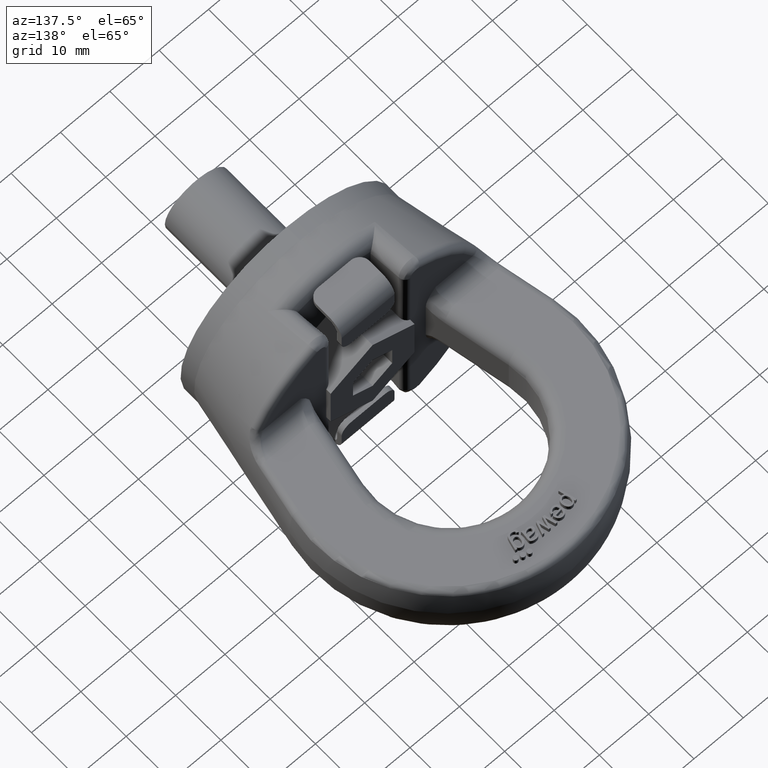
[diagram: clean part render]
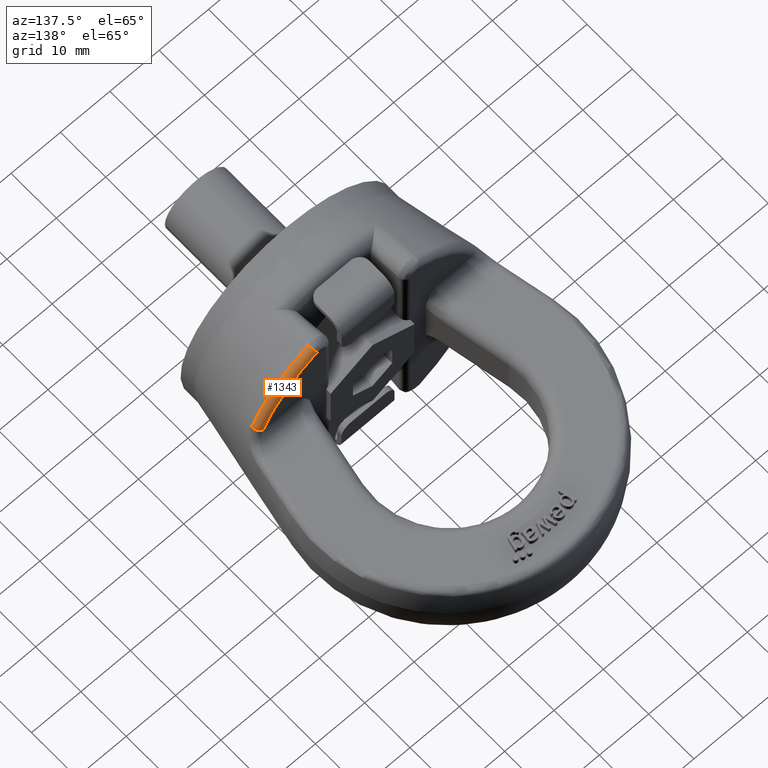
[diagram: same view with one face highlighted and labeled with its STEP entity id]
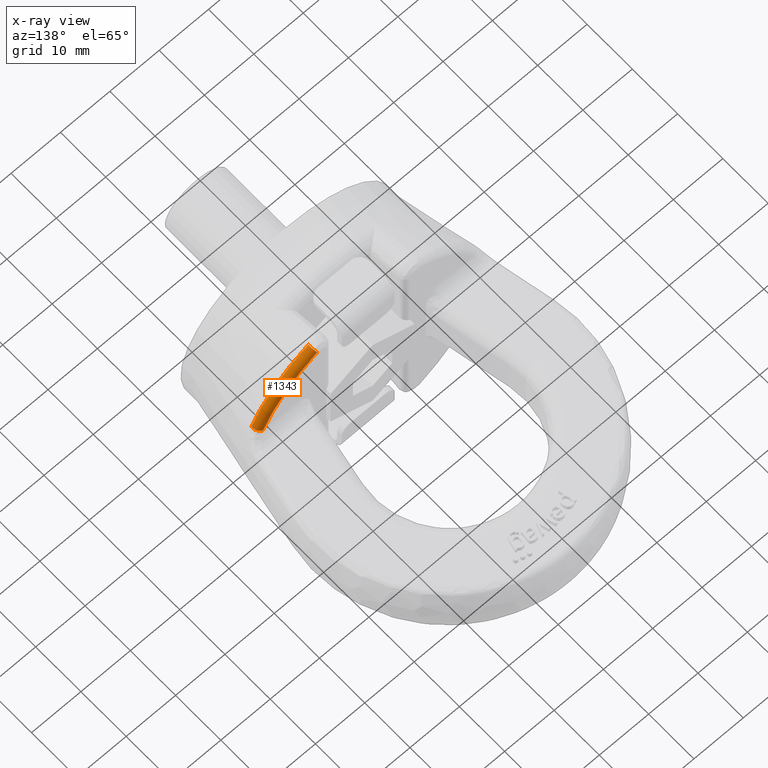
[diagram: x-ray of the same camera — body ghosted, the highlighted face saturated]
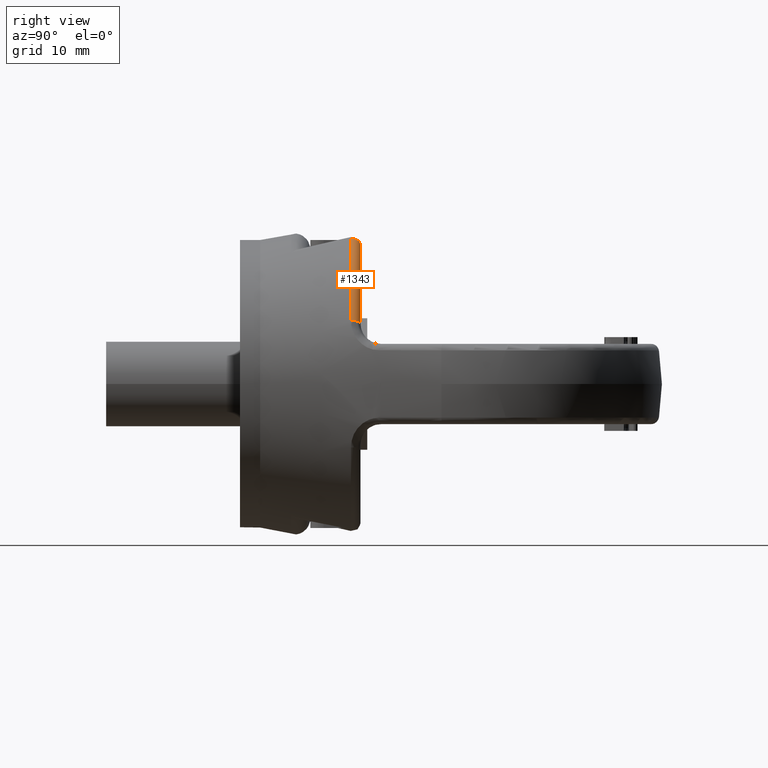
[diagram: same view with one face highlighted and labeled with its STEP entity id]
A machine part, auxiliary view. The second image highlights one B-rep face of the part: STEP entity #1343.
The next image is the same camera in x-ray: the body ghosted, the highlighted face saturated — about 0% of this face is hidden behind the body in this view.
A second angle (right view) of the same face is appended — the face is thin or edge-on in the first view.
In plain terms, the highlighted toroidal blend (fillet) surface has major radius 23.0586 mm and minor (blend) radius 1.2 mm.
Its self-contained STEP definition (entity closure, byte-faithful):
#1017=TOROIDAL_SURFACE('',#5151,23.0585735614723,1.2);
#1121=FACE_OUTER_BOUND('',#1857,.T.);
#1343=ADVANCED_FACE('',(#1121),#1017,.T.);
#1669=CIRCLE('',#5090,23.0585735614723);
#1675=CIRCLE('',#5097,24.2348963405291);
#1694=CIRCLE('',#5149,1.2);
#1695=CIRCLE('',#5150,1.2);
#1857=EDGE_LOOP('',(#2930,#2931,#2932,#2933));
#2930=ORIENTED_EDGE('',*,*,#4404,.T.);
#2931=ORIENTED_EDGE('',*,*,#4325,.F.);
#2932=ORIENTED_EDGE('',*,*,#4405,.F.);
#2933=ORIENTED_EDGE('',*,*,#4341,.F.);
#3939=VERTEX_POINT('',#6661);
#3940=VERTEX_POINT('',#6663);
#3955=VERTEX_POINT('',#6742);
#3956=VERTEX_POINT('',#6744);
#4325=EDGE_CURVE('',#3939,#3940,#1669,.T.);
#4341=EDGE_CURVE('',#3955,#3956,#1675,.T.);
#4404=EDGE_CURVE('',#3955,#3940,#1694,.T.);
#4405=EDGE_CURVE('',#3956,#3939,#1695,.T.);
#5090=AXIS2_PLACEMENT_3D('',#6662,#5424,#5425);
#5097=AXIS2_PLACEMENT_3D('',#6743,#5439,#5440);
#5149=AXIS2_PLACEMENT_3D('',#7081,#5568,#5569);
#5150=AXIS2_PLACEMENT_3D('',#7100,#5570,#5571);
#5151=AXIS2_PLACEMENT_3D('',#7101,#5572,#5573);
#5424=DIRECTION('',(-1.60537885778491E-15,1.,0.));
#5425=DIRECTION('',(-1.,-1.65508574802981E-15,0.));
#5439=DIRECTION('',(1.60537885778491E-15,-1.,0.));
#5440=DIRECTION('',(1.,1.57475055536617E-15,0.));
#5568=DIRECTION('',(-0.390310353587433,-1.76208204144733E-14,0.920683348324739));
#5569=DIRECTION('',(0.920683348324738,0.,0.390310353587433));
#5570=DIRECTION('',(-0.895248796861605,-1.39531625560938E-15,0.445566596276975));
#5571=DIRECTION('',(0.445566596276975,0.,0.895248796861604));
#5572=DIRECTION('',(-1.60537885778491E-15,1.,0.));
#5573=DIRECTION('',(-1.,-1.57321354344189E-15,0.));
#6661=CARTESIAN_POINT('',(10.2741301367874,18.,20.6431602382529));
#6662=CARTESIAN_POINT('',(-2.32391457489408E-13,18.,0.));
#6663=CARTESIAN_POINT('',(21.2296447141686,18.,9.00000000000001));
#6742=CARTESIAN_POINT('',(22.3126655091013,16.5627981461453,9.45913095982661));
#6743=CARTESIAN_POINT('',(-9.39089219997576E-14,16.5627981461453,0.));
#6744=CARTESIAN_POINT('',(10.7982602735748,16.5627981461453,21.6962617909244));
#7081=CARTESIAN_POINT('',(21.2296447141686,16.8,9.00000000000001));
#7100=CARTESIAN_POINT('',(10.2741301367874,16.8,20.6431602382529));
#7101=CARTESIAN_POINT('',(-2.30465002860066E-13,16.8,0.));